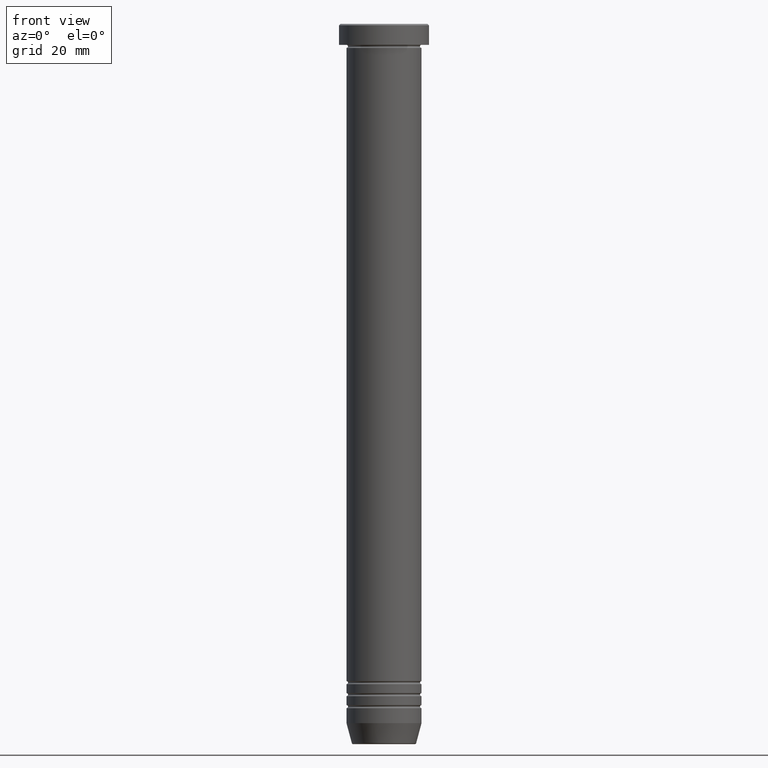
[diagram: clean part render]
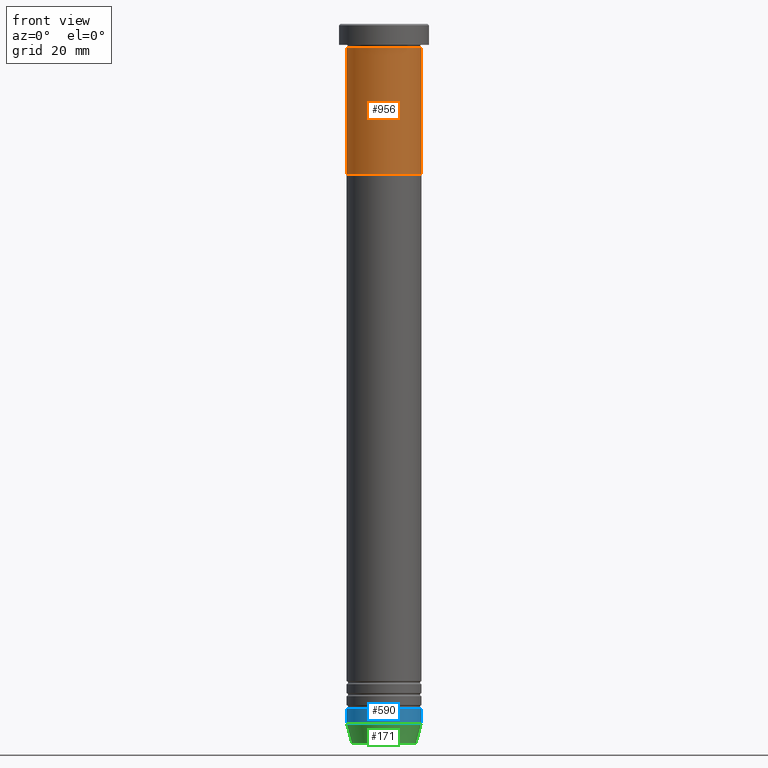
[diagram: same view with three faces highlighted in distinct colors, each labeled with its STEP entity id]
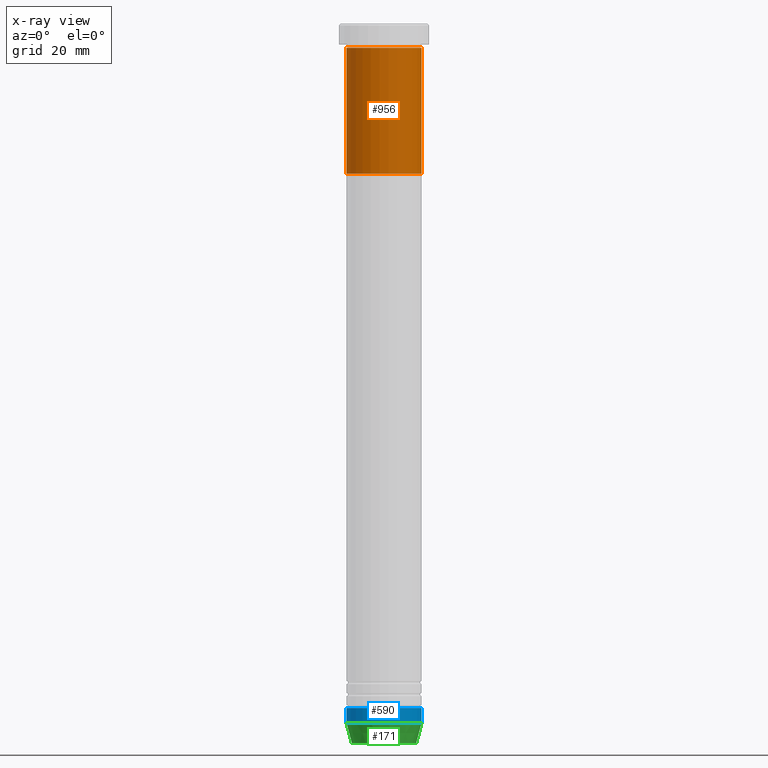
[diagram: x-ray of the same camera — body ghosted, the three highlighted faces saturated]
A machine part, front view with three faces highlighted in distinct colors.
The next image is the same camera in x-ray (body ghosted, the three faces saturated) — at least one of them is partly hidden behind the body in this view.
Their STEP definitions:

[orange] entity #956 — the highlighted cylindrical surface (partial cylindrical patch) has radius 12.5 mm, axis along (-0, -0, 1).
#10 = CARTESIAN_POINT ( 'NONE',  ( -12.50000000000000000, 1.530808498934191521E-15, -50.00000000000000000 ) ) ;
#27 = AXIS2_PLACEMENT_3D ( 'NONE', #395, #422, #821 ) ;
#42 = CARTESIAN_POINT ( 'NONE',  ( 0.000000000000000000, 0.000000000000000000, 0.000000000000000000 ) ) ;
#54 = CARTESIAN_POINT ( 'NONE',  ( 12.50000000000000000, 0.000000000000000000, 0.000000000000000000 ) ) ;
#91 = EDGE_LOOP ( 'NONE', ( #732, #845, #848, #292 ) ) ;
#106 = LINE ( 'NONE', #177, #192 ) ;
#111 = CARTESIAN_POINT ( 'NONE',  ( 12.50000000000000000, 0.000000000000000000, -50.00000000000000000 ) ) ;
#165 = CARTESIAN_POINT ( 'NONE',  ( 0.000000000000000000, 0.000000000000000000, -50.00000000000000000 ) ) ;
#177 = CARTESIAN_POINT ( 'NONE',  ( -12.50000000000000000, 1.530808498934191521E-15, 0.000000000000000000 ) ) ;
#192 = VECTOR ( 'NONE', #730, 1000.000000000000000 ) ;
#273 = DIRECTION ( 'NONE',  ( -0.000000000000000000, -0.000000000000000000, 1.000000000000000000 ) ) ;
#292 = ORIENTED_EDGE ( 'NONE', *, *, #756, .F. ) ;
#395 = CARTESIAN_POINT ( 'NONE',  ( 0.000000000000000000, 0.000000000000000000, -8.000000000000000000 ) ) ;
#408 = AXIS2_PLACEMENT_3D ( 'NONE', #165, #578, #488 ) ;
#422 = DIRECTION ( 'NONE',  ( -0.000000000000000000, -0.000000000000000000, 1.000000000000000000 ) ) ;
#439 = CARTESIAN_POINT ( 'NONE',  ( -12.50000000000000000, 1.530808498934191521E-15, -8.000000000000000000 ) ) ;
#447 = EDGE_CURVE ( 'NONE', #470, #927, #106, .T. ) ;
#470 = VERTEX_POINT ( 'NONE', #10 ) ;
#488 = DIRECTION ( 'NONE',  ( 1.000000000000000000, 0.000000000000000000, 0.000000000000000000 ) ) ;
#527 = CYLINDRICAL_SURFACE ( 'NONE', #960, 12.50000000000000000 ) ;
#536 = LINE ( 'NONE', #54, #785 ) ;
#559 = DIRECTION ( 'NONE',  ( -0.000000000000000000, -0.000000000000000000, 1.000000000000000000 ) ) ;
#578 = DIRECTION ( 'NONE',  ( -0.000000000000000000, -0.000000000000000000, 1.000000000000000000 ) ) ;
#598 = DIRECTION ( 'NONE',  ( 1.000000000000000000, 0.000000000000000000, 0.000000000000000000 ) ) ;
#639 = CIRCLE ( 'NONE', #408, 12.50000000000000000 ) ;
#650 = CARTESIAN_POINT ( 'NONE',  ( 12.50000000000000000, 0.000000000000000000, -8.000000000000000000 ) ) ;
#657 = EDGE_CURVE ( 'NONE', #910, #897, #536, .T. ) ;
#730 = DIRECTION ( 'NONE',  ( -0.000000000000000000, -0.000000000000000000, 1.000000000000000000 ) ) ;
#732 = ORIENTED_EDGE ( 'NONE', *, *, #447, .F. ) ;
#754 = FACE_OUTER_BOUND ( 'NONE', #91, .T. ) ;
#756 = EDGE_CURVE ( 'NONE', #927, #897, #786, .T. ) ;
#785 = VECTOR ( 'NONE', #559, 1000.000000000000000 ) ;
#786 = CIRCLE ( 'NONE', #27, 12.50000000000000000 ) ;
#791 = EDGE_CURVE ( 'NONE', #470, #910, #639, .T. ) ;
#821 = DIRECTION ( 'NONE',  ( 1.000000000000000000, 0.000000000000000000, 0.000000000000000000 ) ) ;
#845 = ORIENTED_EDGE ( 'NONE', *, *, #791, .T. ) ;
#848 = ORIENTED_EDGE ( 'NONE', *, *, #657, .T. ) ;
#897 = VERTEX_POINT ( 'NONE', #650 ) ;
#910 = VERTEX_POINT ( 'NONE', #111 ) ;
#927 = VERTEX_POINT ( 'NONE', #439 ) ;
#956 = ADVANCED_FACE ( 'NONE', ( #754 ), #527, .T. ) ;
#960 = AXIS2_PLACEMENT_3D ( 'NONE', #42, #273, #598 ) ;

[blue] entity #590 — the highlighted cylindrical surface (partial cylindrical patch) has radius 12.5 mm, axis along (-0, -0, 1).
#7 = EDGE_CURVE ( 'NONE', #340, #799, #920, .T. ) ;
#24 = CARTESIAN_POINT ( 'NONE',  ( -12.50000000000000000, 1.530808498934191521E-15, 0.000000000000000000 ) ) ;
#59 = CARTESIAN_POINT ( 'NONE',  ( 0.000000000000000000, 0.000000000000000000, -233.0000000000000000 ) ) ;
#71 = VERTEX_POINT ( 'NONE', #419 ) ;
#74 = DIRECTION ( 'NONE',  ( -0.000000000000000000, -0.000000000000000000, 1.000000000000000000 ) ) ;
#161 = DIRECTION ( 'NONE',  ( 1.000000000000000000, 0.000000000000000000, 0.000000000000000000 ) ) ;
#168 = DIRECTION ( 'NONE',  ( -0.000000000000000000, -0.000000000000000000, 1.000000000000000000 ) ) ;
#178 = CARTESIAN_POINT ( 'NONE',  ( 12.50000000000000000, 0.000000000000000000, 0.000000000000000000 ) ) ;
#182 = EDGE_LOOP ( 'NONE', ( #708, #363, #438, #518 ) ) ;
#199 = CARTESIAN_POINT ( 'NONE',  ( 0.000000000000000000, 0.000000000000000000, 0.000000000000000000 ) ) ;
#245 = EDGE_CURVE ( 'NONE', #340, #937, #492, .T. ) ;
#277 = VECTOR ( 'NONE', #168, 1000.000000000000000 ) ;
#340 = VERTEX_POINT ( 'NONE', #572 ) ;
#344 = LINE ( 'NONE', #178, #277 ) ;
#363 = ORIENTED_EDGE ( 'NONE', *, *, #245, .T. ) ;
#407 = AXIS2_PLACEMENT_3D ( 'NONE', #59, #74, #971 ) ;
#419 = CARTESIAN_POINT ( 'NONE',  ( 12.50000000000000000, 0.000000000000000000, -228.0000000000000000 ) ) ;
#438 = ORIENTED_EDGE ( 'NONE', *, *, #865, .T. ) ;
#492 = CIRCLE ( 'NONE', #407, 12.50000000000000000 ) ;
#502 = CARTESIAN_POINT ( 'NONE',  ( -12.50000000000000000, 1.530808498934191521E-15, -228.0000000000000000 ) ) ;
#513 = DIRECTION ( 'NONE',  ( -0.000000000000000000, -0.000000000000000000, 1.000000000000000000 ) ) ;
#518 = ORIENTED_EDGE ( 'NONE', *, *, #691, .F. ) ;
#572 = CARTESIAN_POINT ( 'NONE',  ( -12.50000000000000000, 1.530808498934191521E-15, -233.0000000000000000 ) ) ;
#577 = CIRCLE ( 'NONE', #653, 12.50000000000000000 ) ;
#590 = ADVANCED_FACE ( 'NONE', ( #597 ), #932, .T. ) ;
#597 = FACE_OUTER_BOUND ( 'NONE', #182, .T. ) ;
#652 = VECTOR ( 'NONE', #901, 1000.000000000000000 ) ;
#653 = AXIS2_PLACEMENT_3D ( 'NONE', #879, #700, #161 ) ;
#691 = EDGE_CURVE ( 'NONE', #799, #71, #577, .T. ) ;
#700 = DIRECTION ( 'NONE',  ( -0.000000000000000000, -0.000000000000000000, 1.000000000000000000 ) ) ;
#708 = ORIENTED_EDGE ( 'NONE', *, *, #7, .F. ) ;
#799 = VERTEX_POINT ( 'NONE', #502 ) ;
#843 = CARTESIAN_POINT ( 'NONE',  ( 12.50000000000000000, 0.000000000000000000, -233.0000000000000000 ) ) ;
#865 = EDGE_CURVE ( 'NONE', #937, #71, #344, .T. ) ;
#879 = CARTESIAN_POINT ( 'NONE',  ( 0.000000000000000000, 0.000000000000000000, -228.0000000000000000 ) ) ;
#901 = DIRECTION ( 'NONE',  ( -0.000000000000000000, -0.000000000000000000, 1.000000000000000000 ) ) ;
#920 = LINE ( 'NONE', #24, #652 ) ;
#932 = CYLINDRICAL_SURFACE ( 'NONE', #995, 12.50000000000000000 ) ;
#937 = VERTEX_POINT ( 'NONE', #843 ) ;
#971 = DIRECTION ( 'NONE',  ( 1.000000000000000000, 0.000000000000000000, 0.000000000000000000 ) ) ;
#995 = AXIS2_PLACEMENT_3D ( 'NONE', #199, #513, #1055 ) ;
#1055 = DIRECTION ( 'NONE',  ( 1.000000000000000000, 0.000000000000000000, 0.000000000000000000 ) ) ;

[green] entity #171 — the highlighted conical surface has half-angle 15 deg.
#59 = CARTESIAN_POINT ( 'NONE',  ( 0.000000000000000000, 0.000000000000000000, -233.0000000000000000 ) ) ;
#68 = VECTOR ( 'NONE', #553, 1000.000000000000114 ) ;
#74 = DIRECTION ( 'NONE',  ( -0.000000000000000000, -0.000000000000000000, 1.000000000000000000 ) ) ;
#76 = CARTESIAN_POINT ( 'NONE',  ( 10.62435565298212481, 0.000000000000000000, -240.0000000000000568 ) ) ;
#85 = CARTESIAN_POINT ( 'NONE',  ( 10.72365507213717706, 0.000000000000000000, -239.6294095225513274 ) ) ;
#98 = DIRECTION ( 'NONE',  ( -0.000000000000000000, -0.000000000000000000, 1.000000000000000000 ) ) ;
#117 = EDGE_LOOP ( 'NONE', ( #330, #789, #575, #662 ) ) ;
#171 = ADVANCED_FACE ( 'NONE', ( #1030 ), #724, .T. ) ;
#223 = AXIS2_PLACEMENT_3D ( 'NONE', #235, #890, #384 ) ;
#235 = CARTESIAN_POINT ( 'NONE',  ( 0.000000000000000000, 0.000000000000000000, -239.6294095225513274 ) ) ;
#245 = EDGE_CURVE ( 'NONE', #340, #937, #492, .T. ) ;
#290 = AXIS2_PLACEMENT_3D ( 'NONE', #613, #98, #682 ) ;
#330 = ORIENTED_EDGE ( 'NONE', *, *, #631, .F. ) ;
#340 = VERTEX_POINT ( 'NONE', #572 ) ;
#384 = DIRECTION ( 'NONE',  ( -1.000000000000000000, 0.000000000000000000, 0.000000000000000000 ) ) ;
#407 = AXIS2_PLACEMENT_3D ( 'NONE', #59, #74, #971 ) ;
#478 = LINE ( 'NONE', #882, #68 ) ;
#492 = CIRCLE ( 'NONE', #407, 12.50000000000000000 ) ;
#553 = DIRECTION ( 'NONE',  ( -0.2588190451025216277, 3.169619151431776035E-17, 0.9659258262890679791 ) ) ;
#572 = CARTESIAN_POINT ( 'NONE',  ( -12.50000000000000000, 1.530808498934191521E-15, -233.0000000000000000 ) ) ;
#575 = ORIENTED_EDGE ( 'NONE', *, *, #714, .T. ) ;
#592 = CIRCLE ( 'NONE', #223, 10.72365507213717706 ) ;
#613 = CARTESIAN_POINT ( 'NONE',  ( 0.000000000000000000, 0.000000000000000000, -240.0000000000000568 ) ) ;
#631 = EDGE_CURVE ( 'NONE', #898, #340, #478, .T. ) ;
#662 = ORIENTED_EDGE ( 'NONE', *, *, #245, .F. ) ;
#673 = EDGE_CURVE ( 'NONE', #898, #762, #592, .T. ) ;
#682 = DIRECTION ( 'NONE',  ( 1.000000000000000000, 0.000000000000000000, 0.000000000000000000 ) ) ;
#714 = EDGE_CURVE ( 'NONE', #762, #937, #876, .T. ) ;
#724 = CONICAL_SURFACE ( 'NONE', #290, 10.62435565298212481, 0.2617993877991502960 ) ;
#762 = VERTEX_POINT ( 'NONE', #85 ) ;
#789 = ORIENTED_EDGE ( 'NONE', *, *, #673, .T. ) ;
#843 = CARTESIAN_POINT ( 'NONE',  ( 12.50000000000000000, 0.000000000000000000, -233.0000000000000000 ) ) ;
#876 = LINE ( 'NONE', #76, #958 ) ;
#882 = CARTESIAN_POINT ( 'NONE',  ( -10.62435565298212481, 1.301108314342764740E-15, -240.0000000000000568 ) ) ;
#890 = DIRECTION ( 'NONE',  ( -0.000000000000000000, -0.000000000000000000, 1.000000000000000000 ) ) ;
#898 = VERTEX_POINT ( 'NONE', #992 ) ;
#937 = VERTEX_POINT ( 'NONE', #843 ) ;
#958 = VECTOR ( 'NONE', #1040, 1000.000000000000114 ) ;
#971 = DIRECTION ( 'NONE',  ( 1.000000000000000000, 0.000000000000000000, 0.000000000000000000 ) ) ;
#992 = CARTESIAN_POINT ( 'NONE',  ( -10.72365507213717706, 1.422038742429749332E-15, -239.6294095225513274 ) ) ;
#1030 = FACE_OUTER_BOUND ( 'NONE', #117, .T. ) ;
#1040 = DIRECTION ( 'NONE',  ( 0.2588190451025216277, 0.000000000000000000, 0.9659258262890679791 ) ) ;